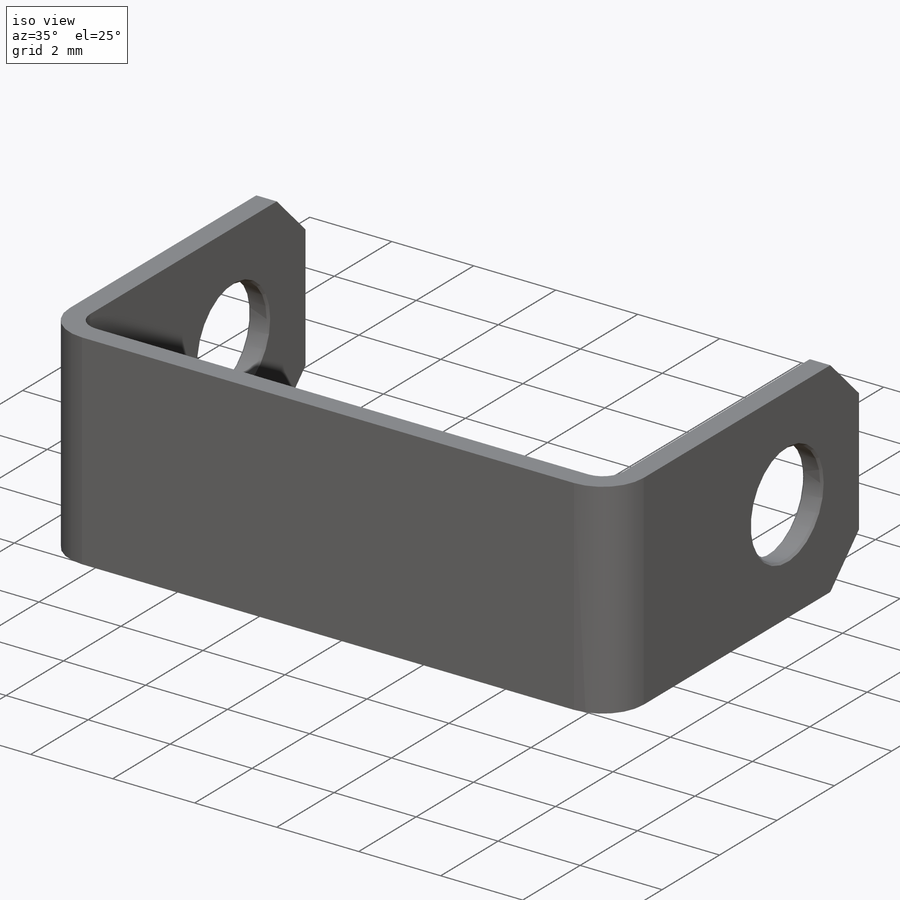
[diagram: iso view]
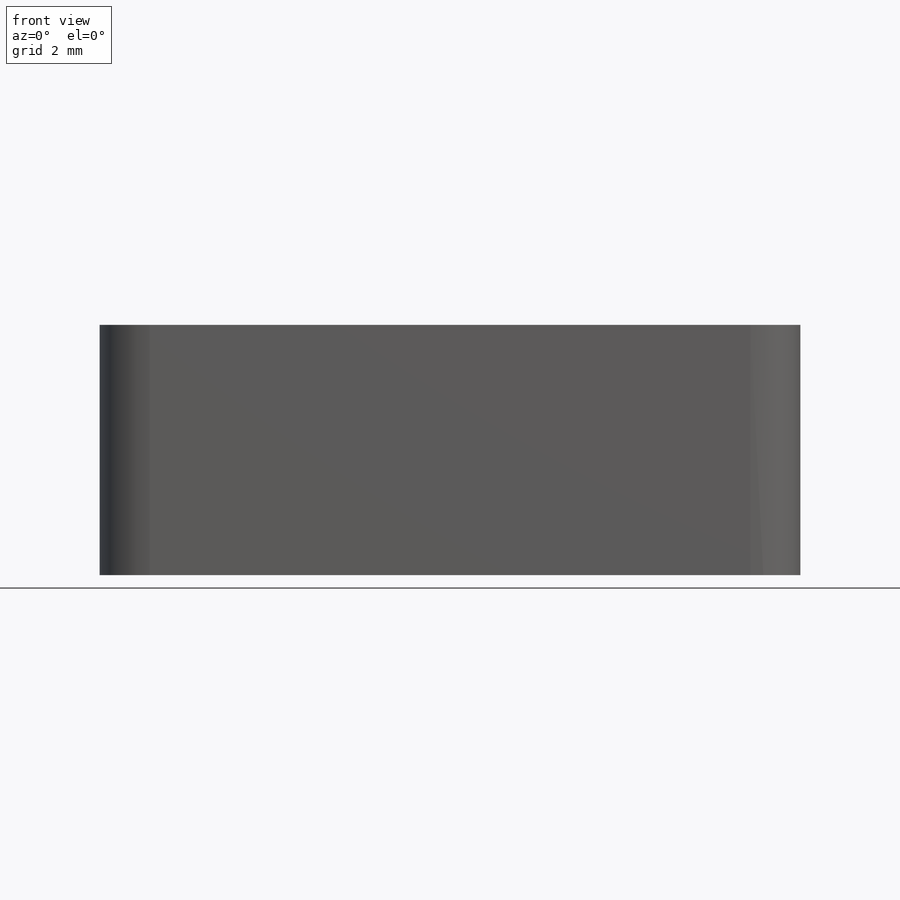
[diagram: front view]
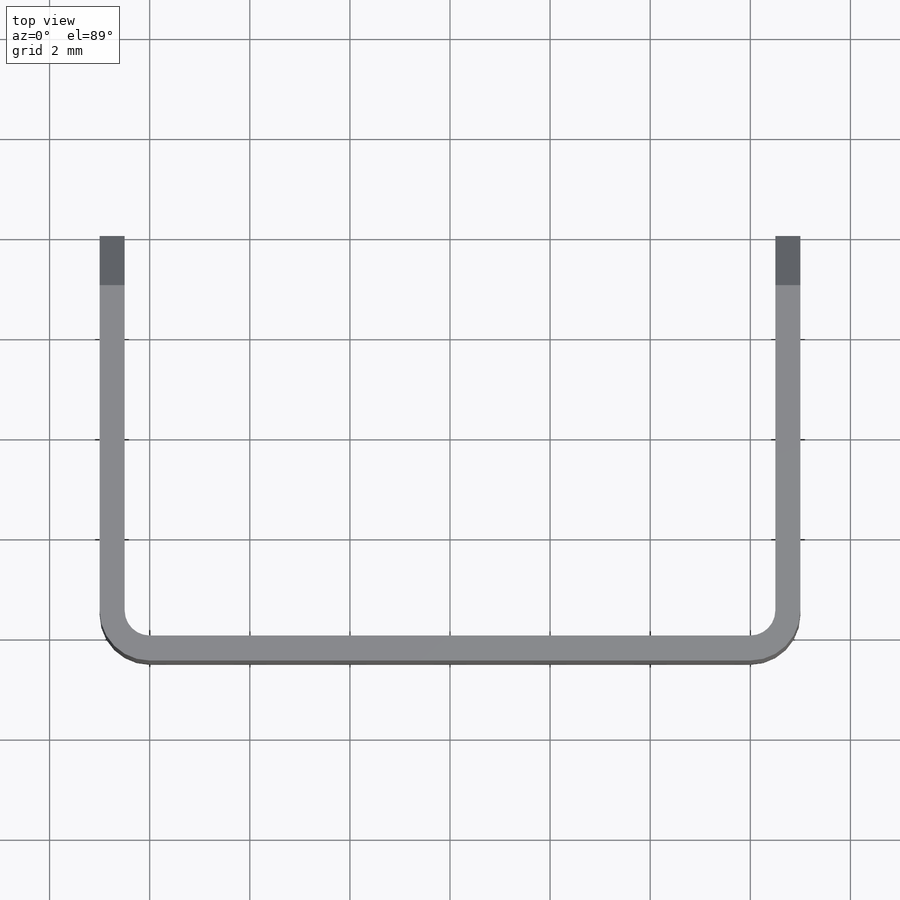
[diagram: top view]
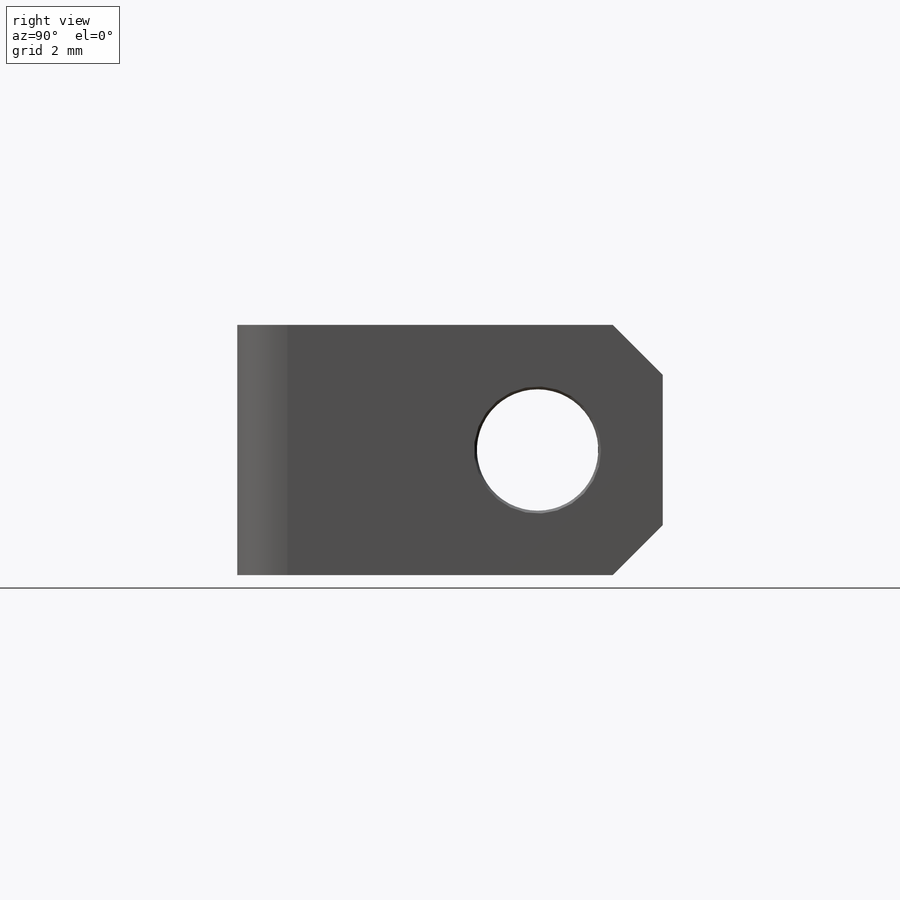
[diagram: right view]
SOLIDWORKS PART (.sldprt)
format: sldprt  version: not decoded by parser v0  size: 457,728 bytes
history: native  units: mm
features: sketch x6, plane x3, hole x2, chamfer x2, material x1, extrude x1, sheet_metal_op x1 + 2 further entries (+13 scaffold rows collapsed)
feature tree (31):
  scaffold x13  (default folders/planes/origin — collapsed)
  material  "Материал <не указан>"
  plane  "Спереди"
  plane  "Сверху"
  plane  "Справа"
  sketch  "Эскиз1"  dims[D1=0.5mm D2=13.0mm D3=8.0mm D4=0.5mm]
  extrude  "Бобышка-Вытянуть1"  Depth=5mm
  sheet_metal_op  "Листовой металл1"  Толщина=0.5mm Скругленный сгиб2=0
  hole  "Отверстие с зазором #21"  [1 undecoded]
  sketch  "Эскиз4"  dims[D1=5.5mm D2=2.5mm]
  sketch  "Эскиз3"  dims[hole-wizard template sketch: 46 standard entries collapsed; hole parameters kept: c15.Диаметр сквозного отверстия=2.4384mm c15.Глубина сквозного отверстия=0.5mm c15.Диаметр передней зенковки=2.54mm c15.D4=~3.666174mm c15.Угол передней зенковки=90.0deg c15.Диаметр задней зенковки=2.54mm c15.D6=~9.919017mm c15.Угол задней зенковки=90.0deg]
  hole  "Отверстие с зазором #22"  [1 undecoded]
  sketch  "Эскиз6"
  sketch  "Эскиз5"  dims[hole-wizard template sketch: 46 standard entries collapsed; hole parameters kept: c15.Диаметр сквозного отверстия=2.4384mm c15.Глубина сквозного отверстия=0.5mm c15.Диаметр передней зенковки=2.54mm c15.D4=~3.666174mm c15.Угол передней зенковки=90.0deg c15.Диаметр задней зенковки=2.54mm c15.D6=~9.919017mm c15.Угол задней зенковки=90.0deg]
  chamfer  "Фаска1"  Distance=1mm Angle=45deg
  "Развертка1"
  sketch  "Сгиб-Линии1"
  chamfer  "Плоское состояние-<Скругленный сгиб2>1"  [1 undecoded]
  "Преобразование эскиза1"
decode coverage: 7 of 12 modeling features carry decoded parameters; 2 rows unclassified (native names shown)
note: ~ marks probable driven/reference dimensions
note: 3 parameter values undecoded
summary: no parameter record found for 3 features
note: suppression state not decoded; provenance and decode notes live in map.json
